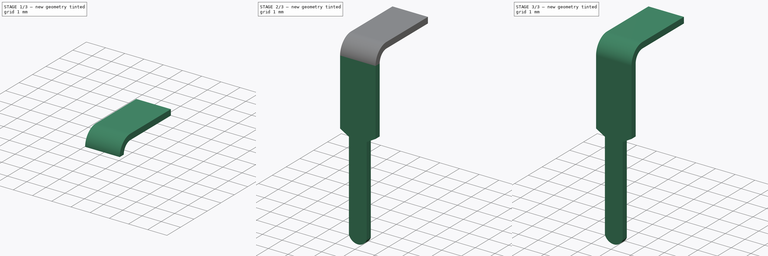
[diagram: build sequence overview — one tinted view per stage of 3, left to right]
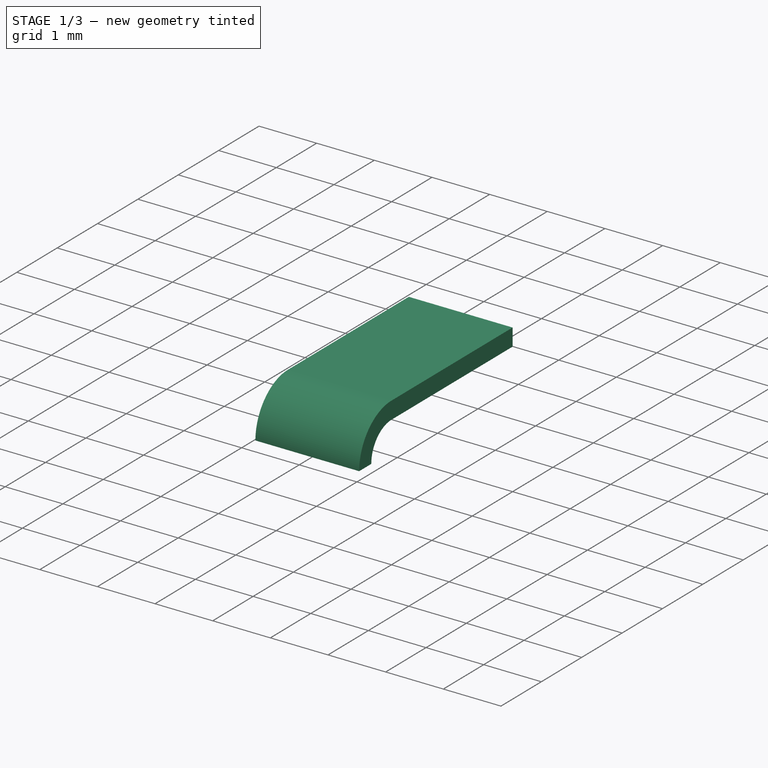
[diagram: stage 1 of 3 — iso view after this stage's code; geometry added in this stage tinted green]
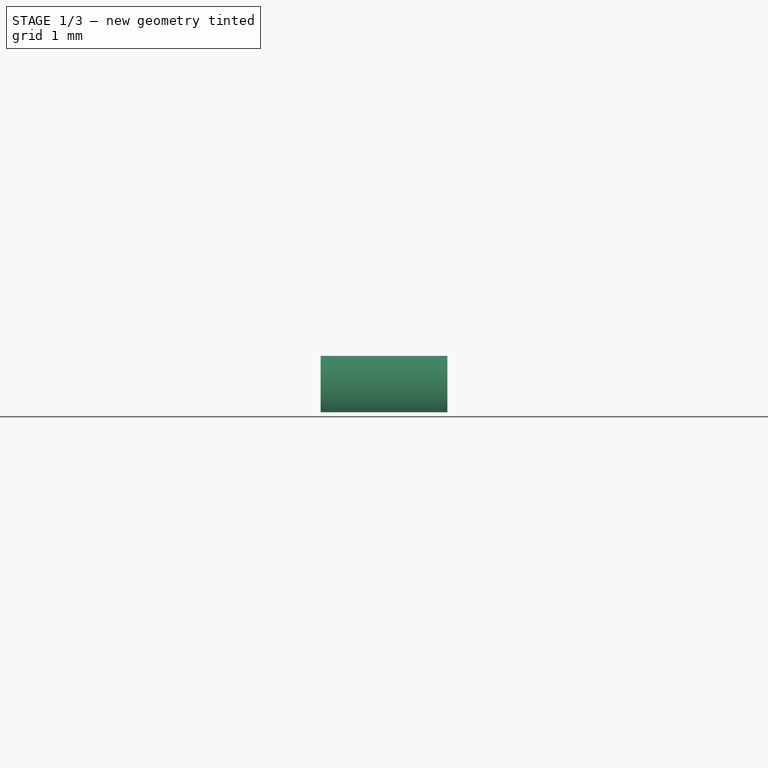
[diagram: stage 1 of 3 — front view after this stage's code; geometry added in this stage tinted green]
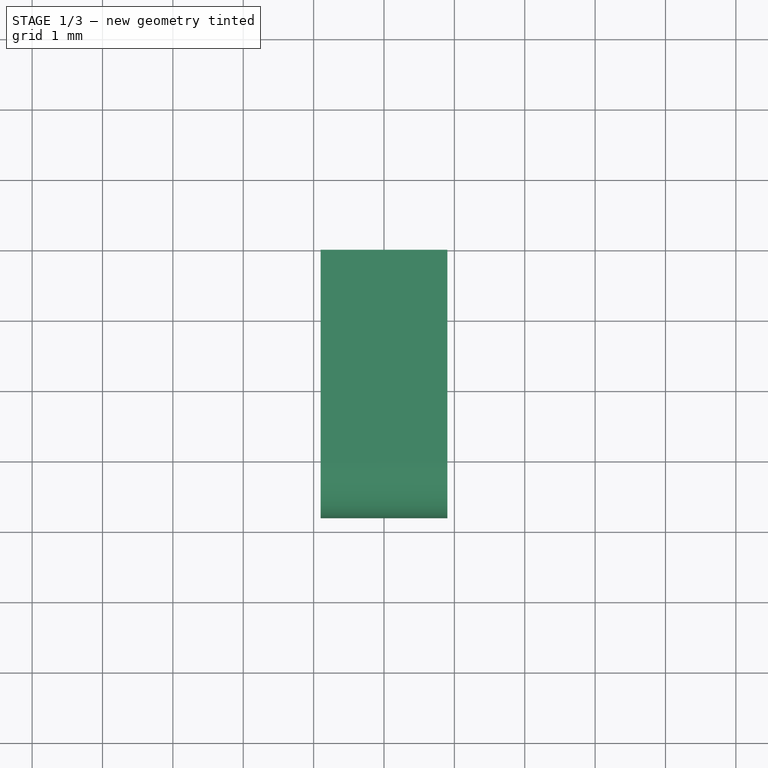
[diagram: stage 1 of 3 — top view after this stage's code; geometry added in this stage tinted green]
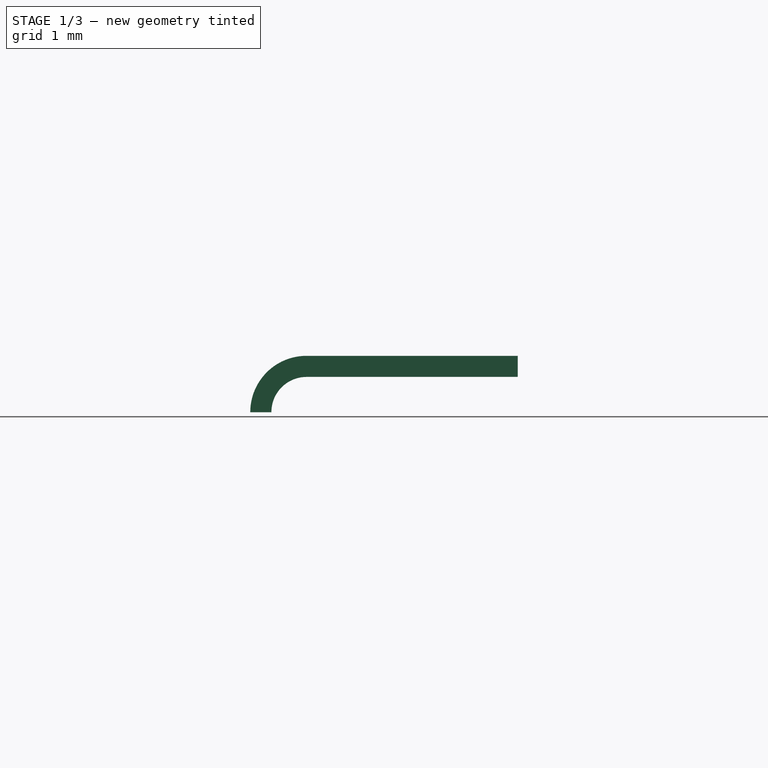
[diagram: stage 1 of 3 — right view after this stage's code; geometry added in this stage tinted green]
FCSTD DOCUMENT  (FreeCAD 0.19R16699 (Git))
Label: RD902F_Terminal_Type_40_R1_3x
License: All rights reserved
LicenseURL: http://en.wikipedia.org/wiki/All_rights_reserved
objects: PartDesign::Body×3, Sketcher::SketchObject×2, PartDesign::Pad×2, PartDesign::FeatureBase×2, PartDesign::FeaturePython×1, App::Part×1
note: 12 computed .brp shape members not serialized (recipe doc carries the construction recipe); baked Part::Feature solids carry a one-line shape summary decoded from their .brp

FEATURE [Sketcher::SketchObject] Sketch001
  MapMode = 5
  Placement = pos=(0,0,0) rot=(1,0,0;1.5708rad)
  Support = -> [XZ_Plane]
  sketch-geometry (4):
    g0: LineSegment StartX=-0.9 StartY=0.15 StartZ=0 EndX=0.9 EndY=0.15 EndZ=0
    g1: LineSegment StartX=0.9 StartY=0.15 StartZ=0 EndX=0.9 EndY=-0.15 EndZ=0
    g2: LineSegment StartX=0.9 StartY=-0.15 StartZ=0 EndX=-0.9 EndY=-0.15 EndZ=0
    g3: LineSegment StartX=-0.9 StartY=-0.15 StartZ=0 EndX=-0.9 EndY=0.15 EndZ=0
  constraints (10):
    c: Coincident(g0,g1)
    c: Coincident(g1,g2)
    c: Coincident(g2,g3)
    c: Coincident(g3,g0)
    c: Horizontal(g2)
    c: Vertical(g3)
    c: DistanceX(g0,g0) = 1.8
    c: Symmetric(g0,g0,g-2)
    c: Symmetric(g0,g1,g-1)
    c: DistanceY(g1,g0) = 0.3
FEATURE [PartDesign::Pad] Pad
  Length = 3
  Length2 = 2
  Placement = pos=(0,0,0) rot=(1,0,0;1.5708rad)
  Profile = -> Sketch001
  Type = 0
FEATURE [PartDesign::FeaturePython] Bend  # WARN: FeaturePython — macro-defined, semantics opaque (R4)
  AutoMiter = true
  BaseFeature = -> Pad
  BendType = 0
  LengthList = [0.001]
  ReliefFactor = 0.7
  UseReliefFactor = false
  angle = 90
  baseObject = -> Pad [Face6]
  bendAList = [90]
  extend1 = 0
  extend2 = 0
  gap1 = 0
  gap2 = 0
  invert = false
  kfactor = 0.5
  length = 0.001
  miterangle1 = 0
  miterangle2 = 0
  offset = 0
  radius = 0.5
  reliefType = 0
  reliefd = 1
  reliefw = 0.8
  sketchflip = false
  sketchinvert = false
  unfold = false
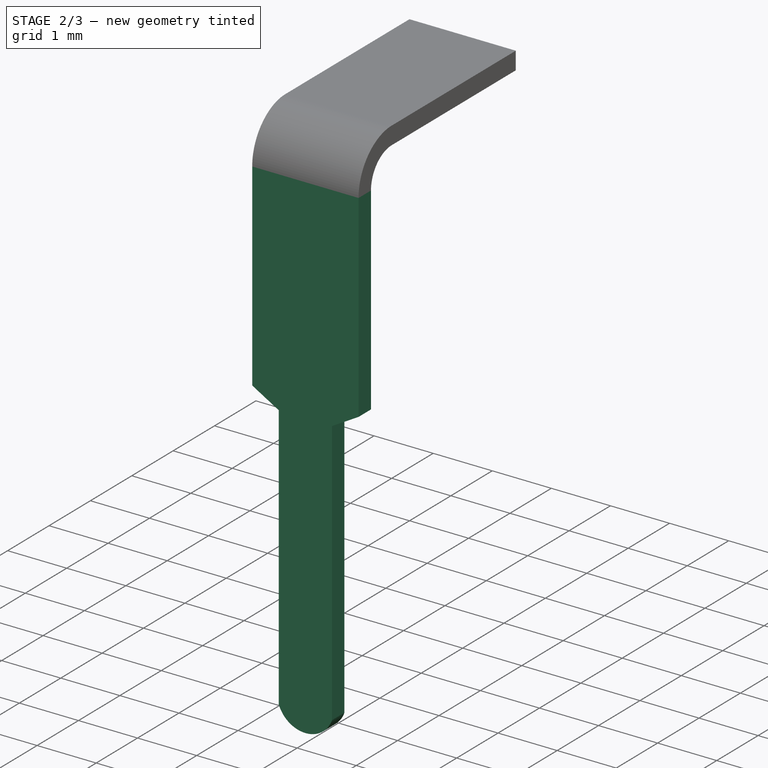
[diagram: stage 2 of 3 — iso view after this stage's code; geometry added in this stage tinted green]
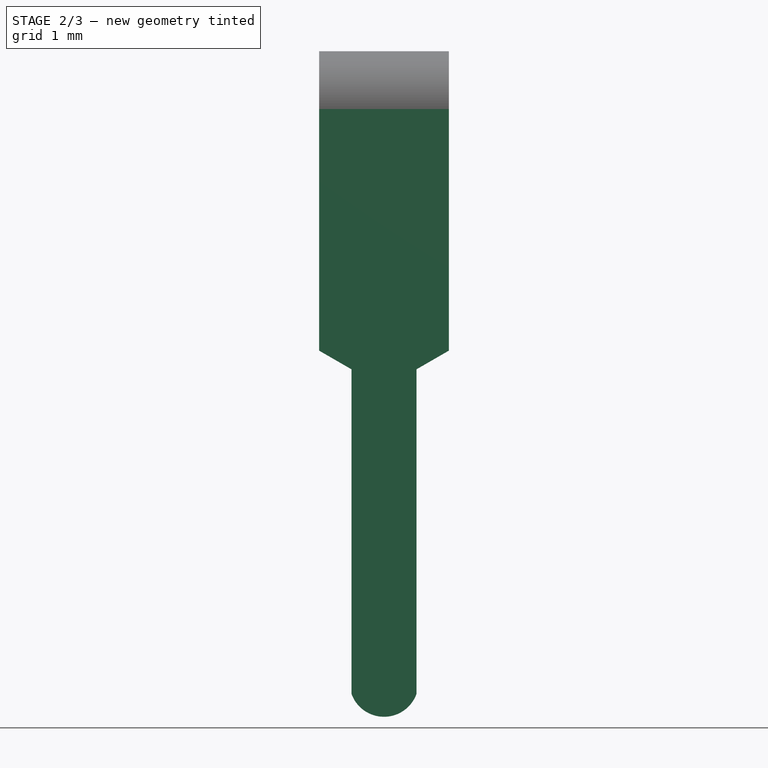
[diagram: stage 2 of 3 — front view after this stage's code; geometry added in this stage tinted green]
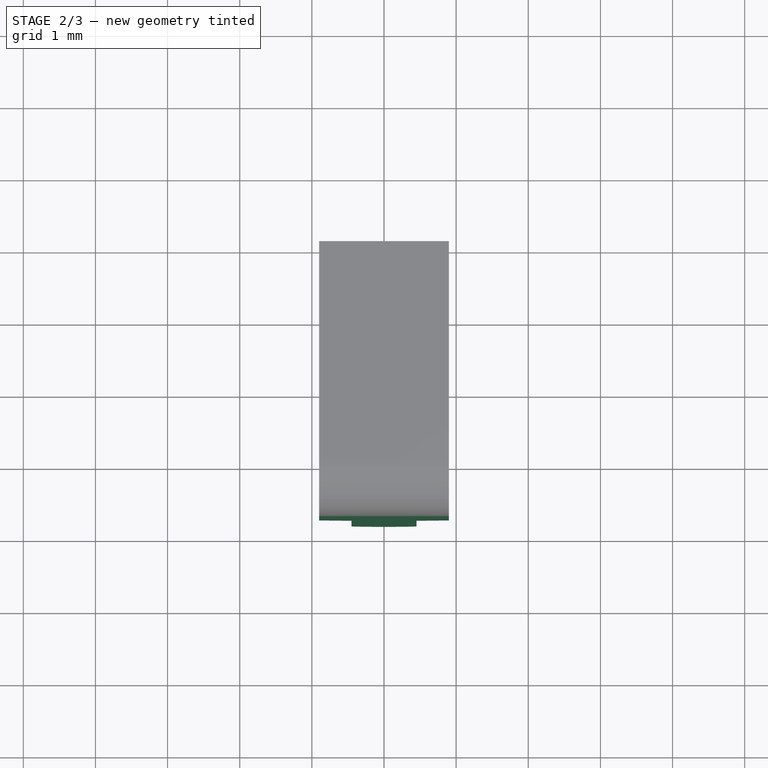
[diagram: stage 2 of 3 — top view after this stage's code; geometry added in this stage tinted green]
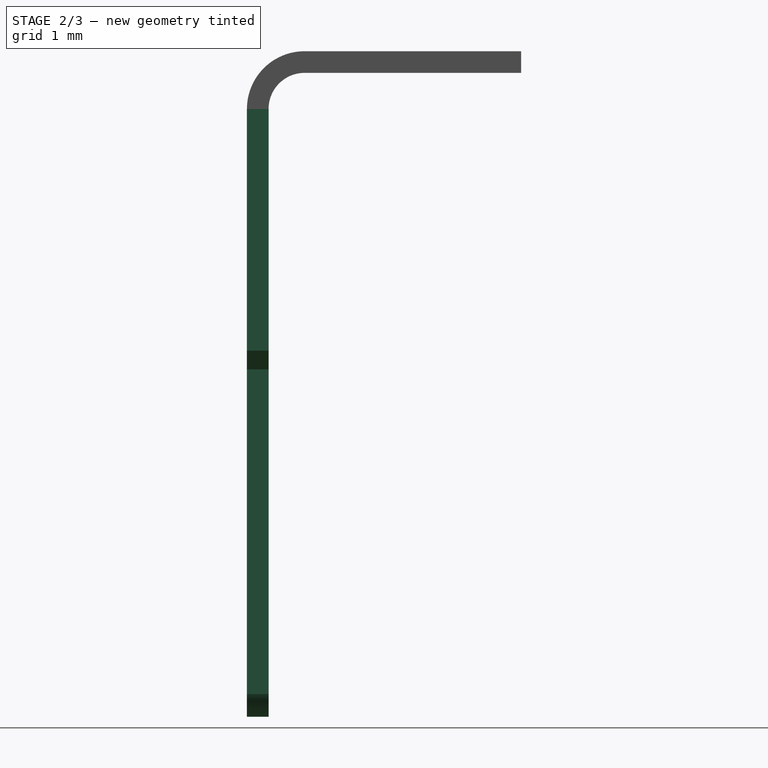
[diagram: stage 2 of 3 — right view after this stage's code; geometry added in this stage tinted green]
FEATURE [Sketcher::SketchObject] Sketch
  AttachmentOffset = pos=(0,0,3.65) rot=(0,0,1;0rad)
  MapMode = 5
  Placement = pos=(0,-3.65,-8e-16) rot=(1,0,0;1.5708rad)
  Support = -> [XZ_Plane]
  sketch-geometry (9):
    g0: LineSegment StartX=0.9 StartY=-4 StartZ=0 EndX=0.45 EndY=-4.25981 EndZ=0
    g1: LineSegment StartX=0.45 StartY=-4.25981 StartZ=0 EndX=0.45 EndY=-8.75981 EndZ=0
    g2: LineSegment StartX=-0.9 StartY=-4 StartZ=0 EndX=-0.45 EndY=-4.25981 EndZ=0
    g3: LineSegment StartX=-0.45 StartY=-4.25981 StartZ=0 EndX=-0.45 EndY=-8.75981 EndZ=0
    g4: ArcOfCircle CenterX=0 CenterY=-8.59778 CenterZ=0 NormalX=0 NormalY=0 NormalZ=1 AngleXU=0 Radius=0.478283 StartAngle=3.48721 EndAngle=5.93757
    g5: GeomPoint X=0 Y=-9.07606 Z=0
    g6: LineSegment StartX=-0.9 StartY=-4 StartZ=0 EndX=-0.9 EndY=-0.65 EndZ=0
    g7: LineSegment StartX=-0.9 StartY=-0.65 StartZ=0 EndX=0.9 EndY=-0.65 EndZ=0
    g8: LineSegment StartX=0.9 StartY=-0.65 StartZ=0 EndX=0.9 EndY=-4 EndZ=0
  constraints (25):
    c: Coincident(g0,g1)
    c: Vertical(g1)
    c: Coincident(g2,g3)
    c: Vertical(g3)
    c: PointOnObject(g4,g-2)
    c: Coincident(g4,g3)
    c: Coincident(g4,g1)
    c: DistanceX(g2,g0) = 1.8
    c: DistanceX(g3,g1) = 0.9
    c: Horizontal(g3,g1)
    c: PointOnObject(g5,g4)
    c: PointOnObject(g5,g-2)
    c: Horizontal(g2,g0)
    c: Angle(g0,g2) = 2.0944
    c: Symmetric(g0,g2,g-2)
    c: DistanceY(g3,g3) = 4.5
    c: DistanceY(g2,g-1) = 4
    c: Coincident(g2,g6)
    c: Vertical(g6)
    c: Coincident(g6,g7)
    c: Horizontal(g7)
    c: Coincident(g7,g8)
    c: Coincident(g8,g0)
    c: Vertical(g8)
    c: DistanceY(g6,g-1) = 0.65
FEATURE [PartDesign::Pad] Pad001
  BaseFeature = -> Bend
  Length = 0.3
  Length2 = 100
  Midplane = true
  Profile = -> Sketch
  Type = 0
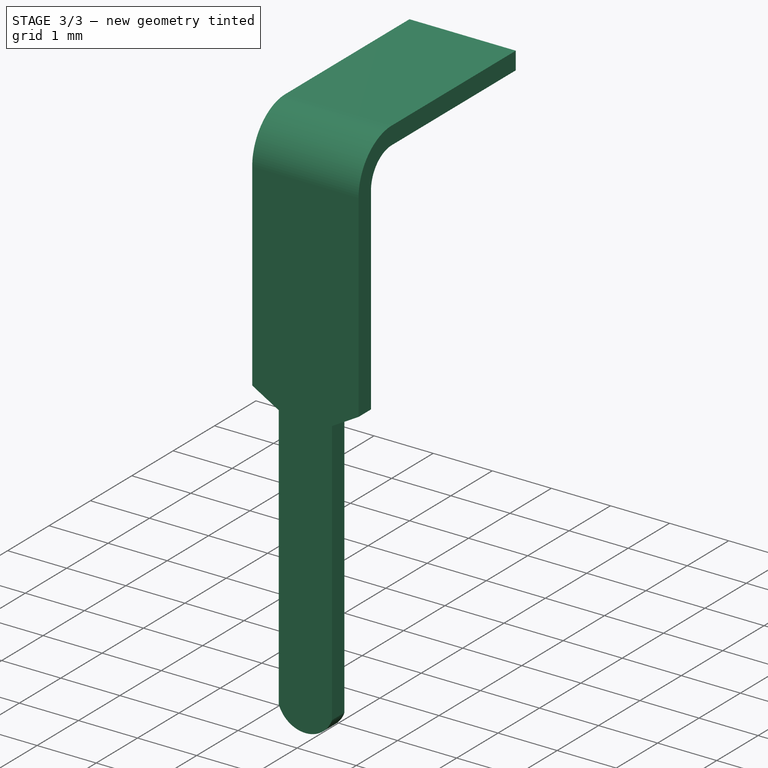
[diagram: stage 3 of 3 — iso view after this stage's code; geometry added in this stage tinted green]
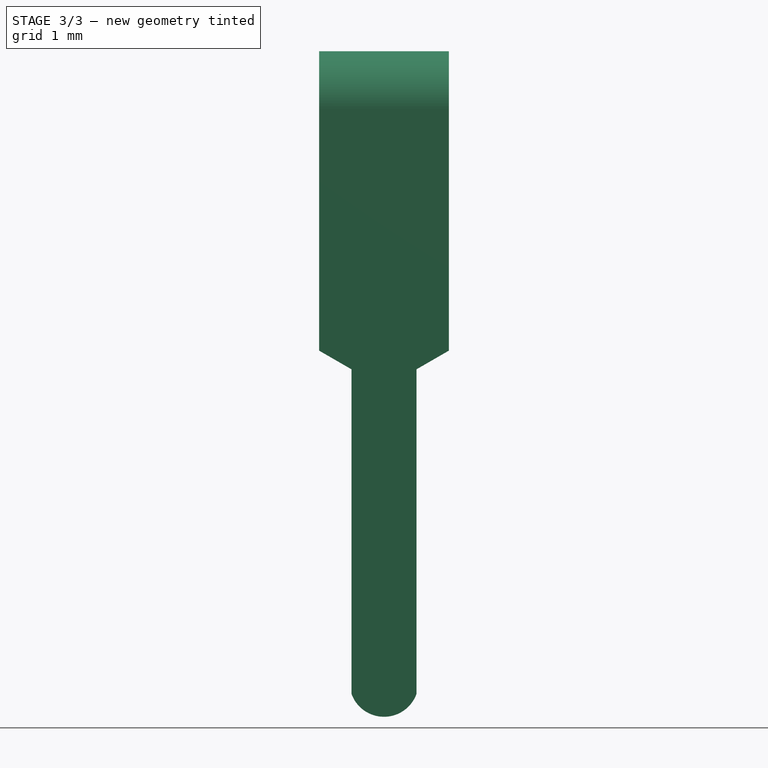
[diagram: stage 3 of 3 — front view after this stage's code; geometry added in this stage tinted green]
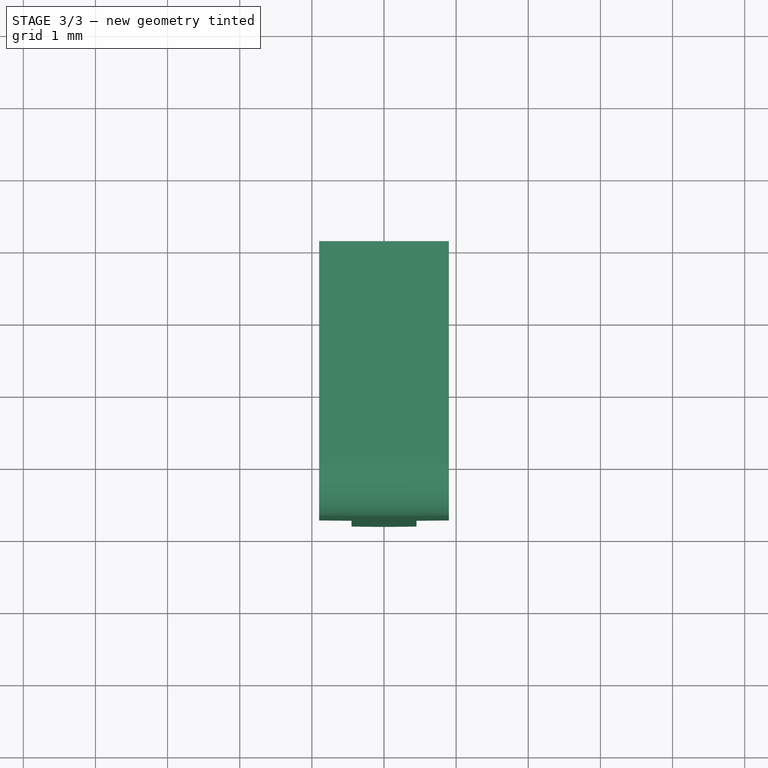
[diagram: stage 3 of 3 — top view after this stage's code; geometry added in this stage tinted green]
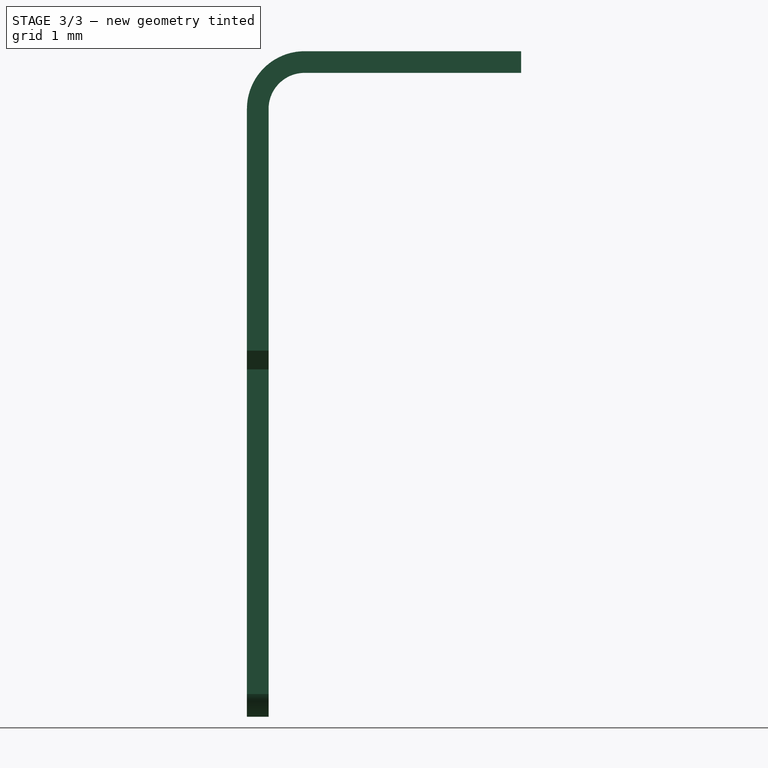
[diagram: stage 3 of 3 — right view after this stage's code; geometry added in this stage tinted green]
FEATURE [PartDesign::Body] Body  label="RD902F_Terminal_Type_40_R1_2"
  Group = -> [Sketch001,Pad,Bend,Sketch,Pad001]
  Origin = -> Origin
  Tip = -> Pad001
FEATURE [PartDesign::FeatureBase] Clone
  BaseFeature = -> Body
FEATURE [PartDesign::Body] Body001  label="RD902F_Terminal_Type_40_R1_1"
  BaseFeature = -> Body
  Group = -> [Clone]
  Origin = -> Origin002
  Placement = pos=(-2.5,0,0) rot=(0,0,1;0rad)
  Tip = -> Clone
FEATURE [PartDesign::FeatureBase] Clone001
  BaseFeature = -> Body
FEATURE [PartDesign::Body] Body002  label="RD902F_Terminal_Type_40_R1_3"
  BaseFeature = -> Body
  Group = -> [Clone001]
  Origin = -> Origin003
  Placement = pos=(2.5,0,0) rot=(0,0,1;0rad)
  Tip = -> Clone001
FEATURE [App::Part] Part  label="RD902F_Terminal_Type_40_R1_3x"
  Group = -> [Body001,Body,Body002]
  Origin = -> Origin001
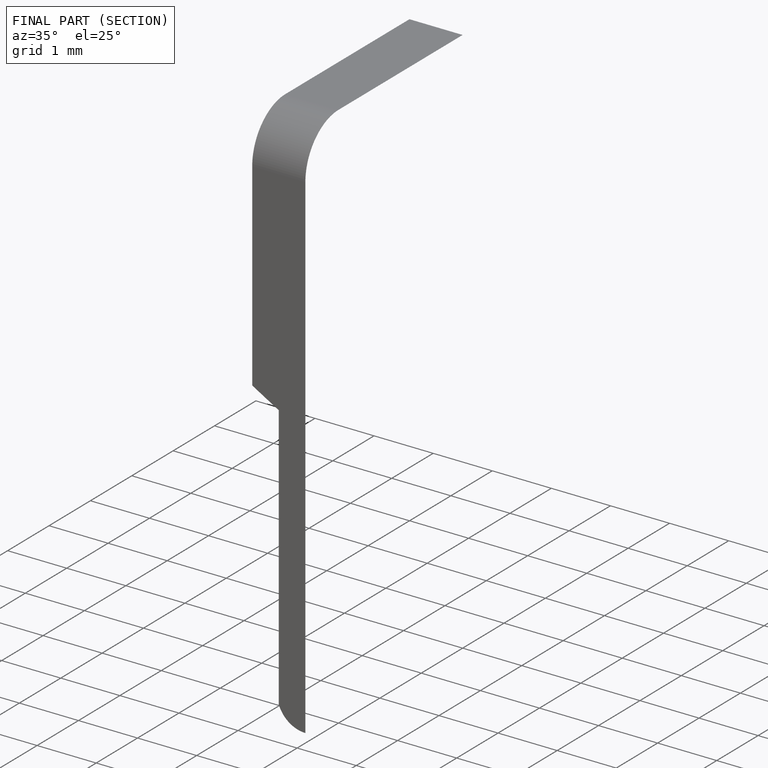
[diagram: finished part — half-section view (interior)]
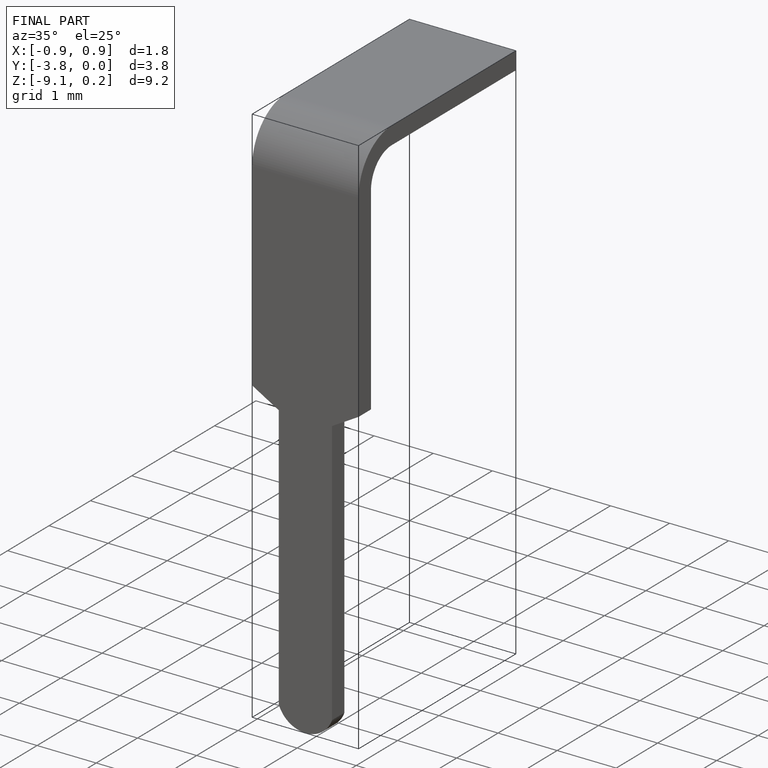
[diagram: finished part — iso view with bounding-box wireframe]
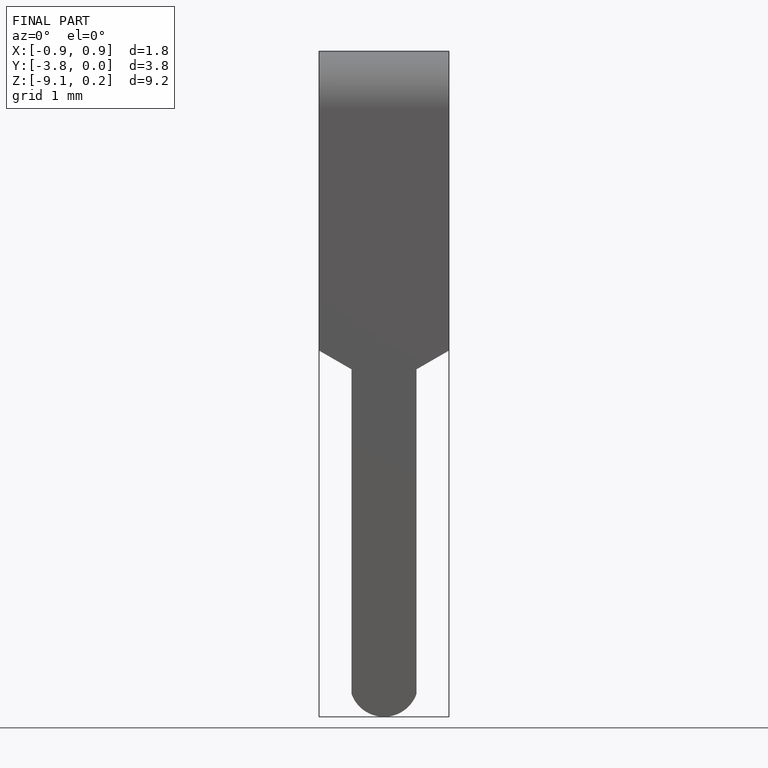
[diagram: finished part — front view with bounding-box wireframe]
